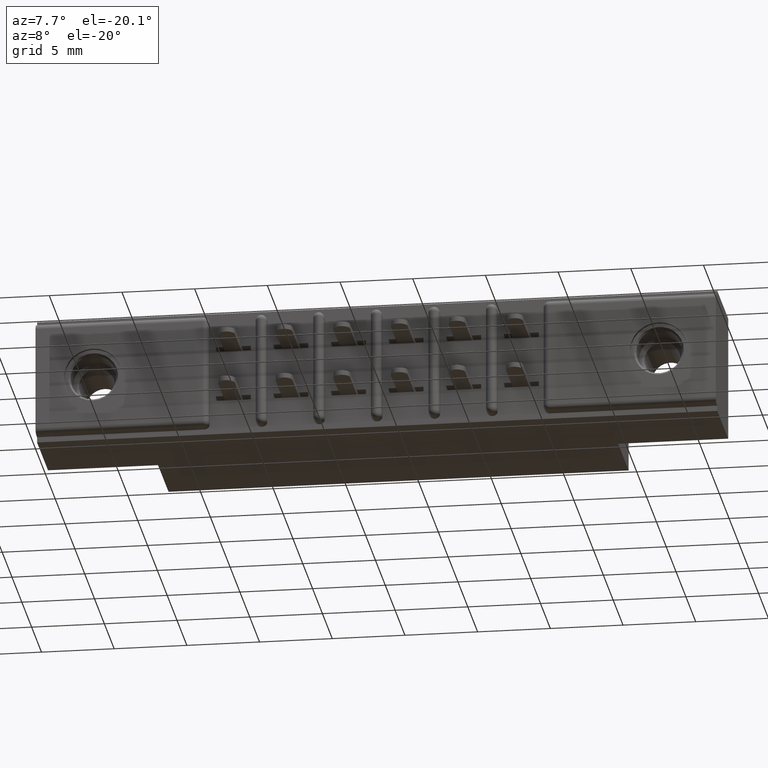
[diagram: clean part render]
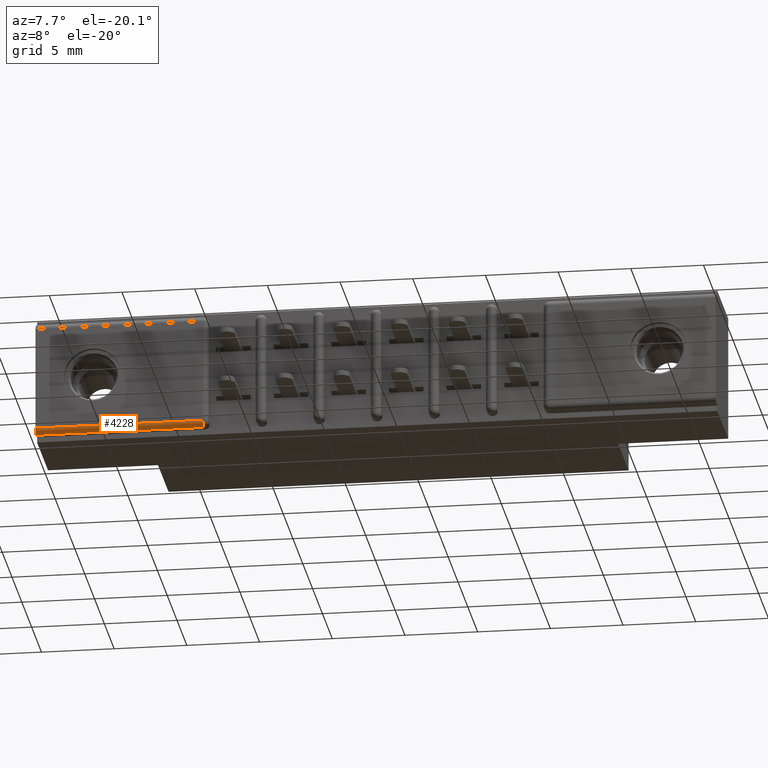
[diagram: same view with one face highlighted and labeled with its STEP entity id]
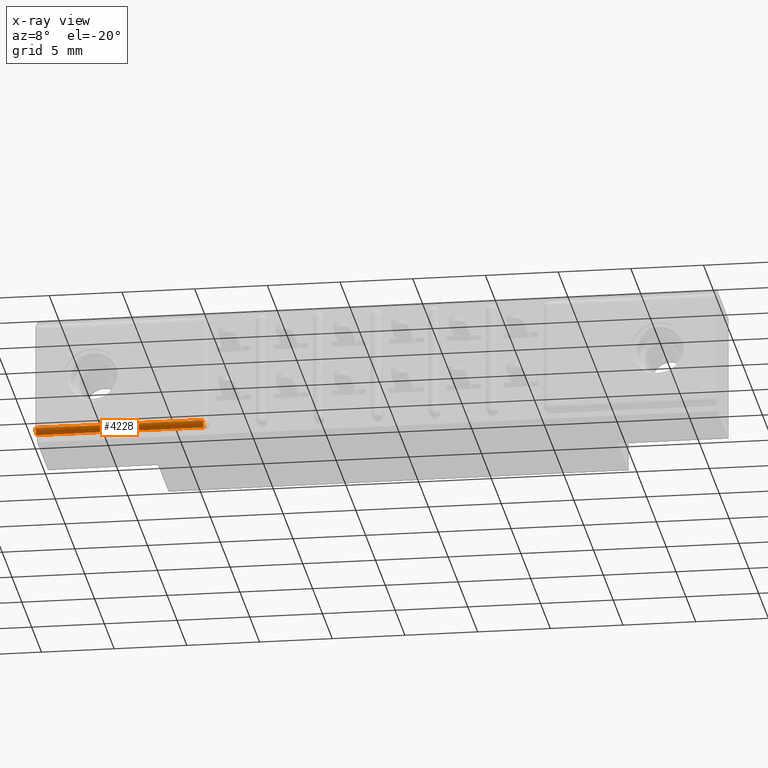
[diagram: x-ray of the same camera — body ghosted, the highlighted face saturated]
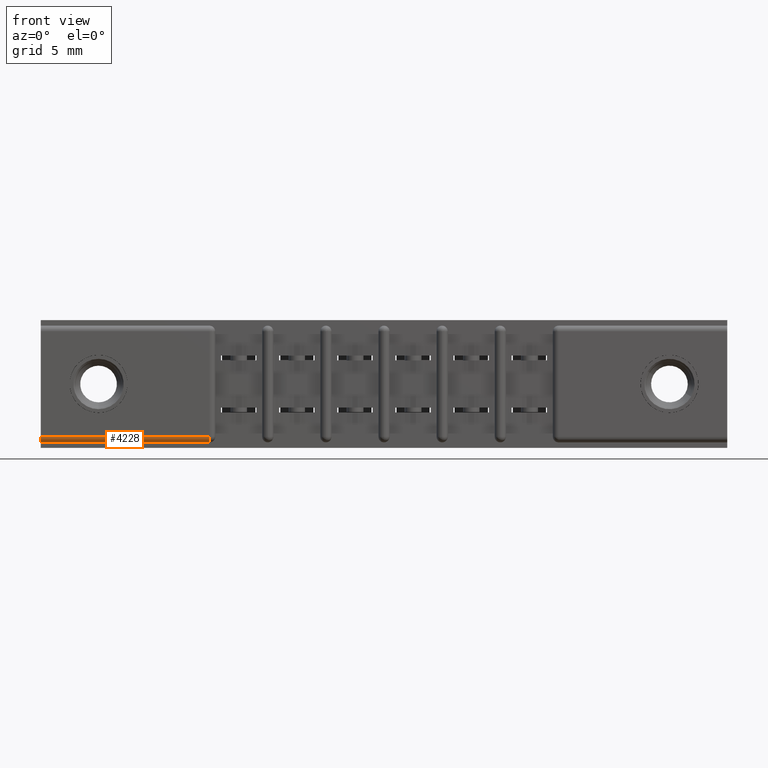
[diagram: same view with one face highlighted and labeled with its STEP entity id]
A machine part, auxiliary view. The second image highlights one B-rep face of the part: STEP entity #4228.
The next image is the same camera in x-ray: the body ghosted, the highlighted face saturated — about 0% of this face is hidden behind the body in this view.
A second angle (front view) of the same face is appended — the face is thin or edge-on in the first view.
In plain terms, the highlighted cylindrical surface (edge-blend (fillet) strip) has radius 0.381 mm, axis along (1, 0, 0).
Its self-contained STEP definition (entity closure, byte-faithful):
#199 = VECTOR ( 'NONE', #217, 39.37007874015748100 ) ;
#217 = DIRECTION ( 'NONE',  ( -1.000000000000000000, 0.0000000000000000000, 0.0000000000000000000 ) ) ;
#379 = CARTESIAN_POINT ( 'NONE',  ( 0.0000000000000000000, 0.01499999999999999900, -0.3130000000000000600 ) ) ;
#523 = CARTESIAN_POINT ( 'NONE',  ( 0.4530000000000003500, 0.0000000000000000000, -0.3130000000000000600 ) ) ;
#681 = VECTOR ( 'NONE', #9892, 39.37007874015748100 ) ;
#779 = VERTEX_POINT ( 'NONE', #991 ) ;
#782 = EDGE_CURVE ( 'NONE', #779, #7463, #7330, .T. ) ;
#793 = CIRCLE ( 'NONE', #906, 0.01499999999999997700 ) ;
#906 = AXIS2_PLACEMENT_3D ( 'NONE', #379, #1337, #9498 ) ;
#991 = CARTESIAN_POINT ( 'NONE',  ( 0.4530000000000003500, 0.01499999999999999900, -0.3280000000000000100 ) ) ;
#1140 = CARTESIAN_POINT ( 'NONE',  ( 0.0000000000000000000, 0.01499999999999999900, -0.3280000000000000100 ) ) ;
#1337 = DIRECTION ( 'NONE',  ( -1.000000000000000000, 0.0000000000000000000, -0.0000000000000000000 ) ) ;
#2145 = DIRECTION ( 'NONE',  ( 1.000000000000000000, 0.0000000000000000000, -0.0000000000000000000 ) ) ;
#2358 = EDGE_CURVE ( 'NONE', #7650, #7463, #8639, .T. ) ;
#2392 = AXIS2_PLACEMENT_3D ( 'NONE', #8538, #2145, #5785 ) ;
#2648 = CARTESIAN_POINT ( 'NONE',  ( 0.0000000000000000000, 0.0000000000000000000, -0.3130000000000000600 ) ) ;
#3195 = ORIENTED_EDGE ( 'NONE', *, *, #3531, .F. ) ;
#3531 = EDGE_CURVE ( 'NONE', #779, #6337, #3559, .T. ) ;
#3559 = LINE ( 'NONE', #1140, #199 ) ;
#3675 = ORIENTED_EDGE ( 'NONE', *, *, #782, .T. ) ;
#3677 = CYLINDRICAL_SURFACE ( 'NONE', #2392, 0.01499999999999997700 ) ;
#3965 = ORIENTED_EDGE ( 'NONE', *, *, #2358, .F. ) ;
#4144 = EDGE_CURVE ( 'NONE', #6337, #7650, #793, .T. ) ;
#4228 = ADVANCED_FACE ( 'NONE', ( #8016 ), #3677, .T. ) ;
#4862 = AXIS2_PLACEMENT_3D ( 'NONE', #7658, #11254, #7575 ) ;
#5210 = CARTESIAN_POINT ( 'NONE',  ( 1.842000000000000700, 0.0000000000000000000, -0.3130000000000000600 ) ) ;
#5710 = EDGE_LOOP ( 'NONE', ( #3195, #3675, #3965, #7685 ) ) ;
#5785 = DIRECTION ( 'NONE',  ( 0.0000000000000000000, 0.0000000000000000000, -1.000000000000000000 ) ) ;
#6337 = VERTEX_POINT ( 'NONE', #7085 ) ;
#7085 = CARTESIAN_POINT ( 'NONE',  ( 0.0000000000000000000, 0.01499999999999999900, -0.3280000000000000100 ) ) ;
#7330 = CIRCLE ( 'NONE', #4862, 0.01499999999999997700 ) ;
#7463 = VERTEX_POINT ( 'NONE', #523 ) ;
#7575 = DIRECTION ( 'NONE',  ( 0.0000000000000000000, 0.0000000000000000000, -1.000000000000000000 ) ) ;
#7650 = VERTEX_POINT ( 'NONE', #2648 ) ;
#7658 = CARTESIAN_POINT ( 'NONE',  ( 0.4530000000000003500, 0.01499999999999999900, -0.3130000000000000600 ) ) ;
#7685 = ORIENTED_EDGE ( 'NONE', *, *, #4144, .F. ) ;
#8016 = FACE_OUTER_BOUND ( 'NONE', #5710, .T. ) ;
#8538 = CARTESIAN_POINT ( 'NONE',  ( 1.842000000000000700, 0.01499999999999999900, -0.3130000000000000600 ) ) ;
#8639 = LINE ( 'NONE', #5210, #681 ) ;
#9498 = DIRECTION ( 'NONE',  ( 0.0000000000000000000, 0.0000000000000000000, -1.000000000000000000 ) ) ;
#9892 = DIRECTION ( 'NONE',  ( 1.000000000000000000, -0.0000000000000000000, -0.0000000000000000000 ) ) ;
#11254 = DIRECTION ( 'NONE',  ( -1.000000000000000000, -0.0000000000000000000, 0.0000000000000000000 ) ) ;